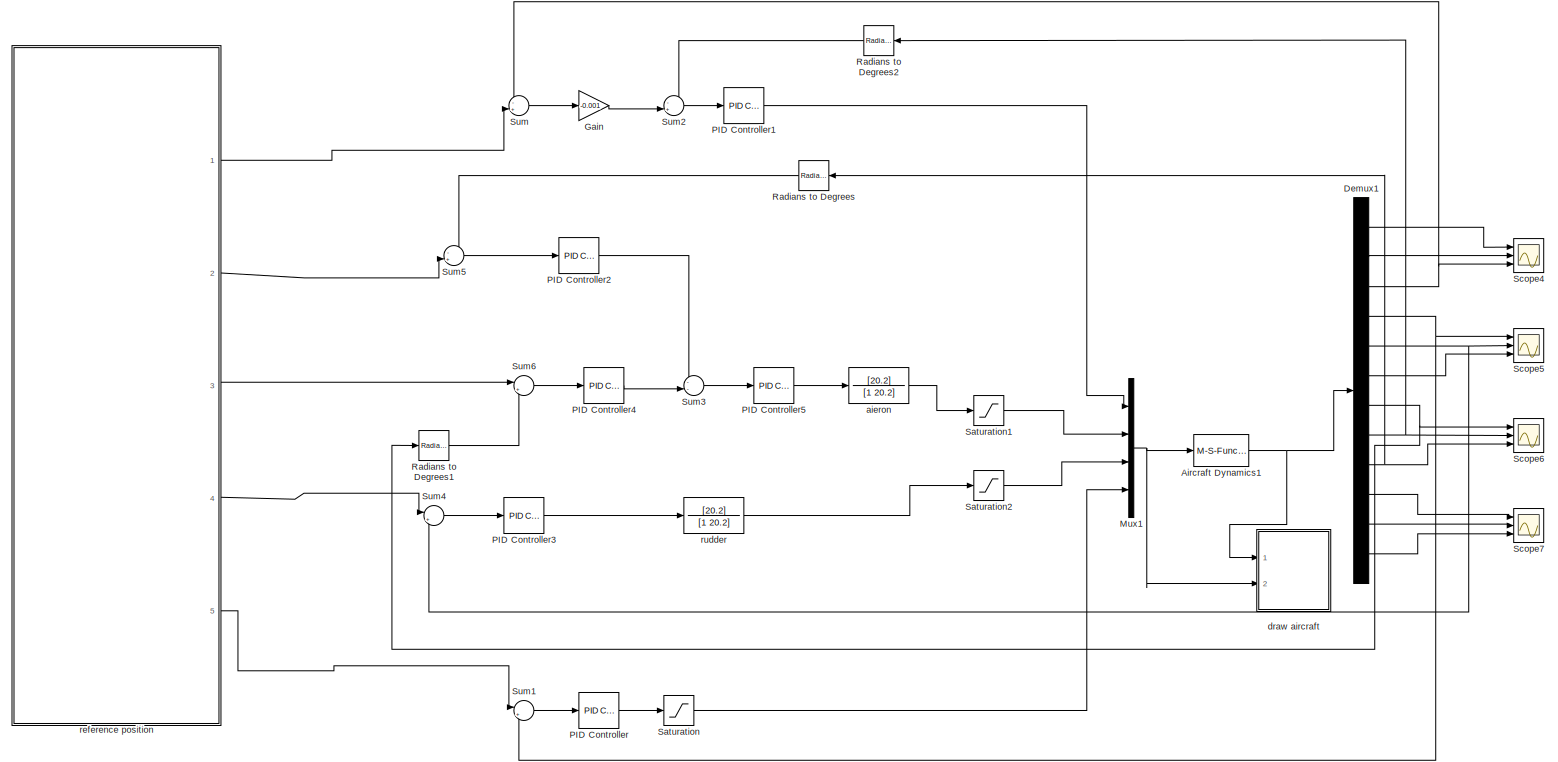
[diagram: root canvas - part 1/1, most of the canvas]
MODEL slx_59e200dbf067
KIND model
CONFIG AbsTol = auto
CONFIG EnableMultiTasking = off
CONFIG FixedStep = auto
CONFIG MaxStep = auto
CONFIG MinStep = auto
CONFIG RelTol = 1e-3
CONFIG SampleTimeConstraint = Unconstrained
CONFIG SolverName = VariableStepAuto
CONFIG StartTime = 0.0
CONFIG StopTime = 500
BLOCK [M-S-Function] Aircraft Dynamics1
  FunctionName = aircraft_dynamics1216_PROJECT
  Parameters = P
  Ports = [1, 1]
BLOCK [Demux] Demux1
  Outputs = 12
  Ports = [1, 12]
BLOCK [Gain] Gain
  Gain = -0.001
  Multiplication = Matrix(K*u)
BLOCK [Mux] Mux1
  DisplayOption = bar
  Ports = [4, 1]
BLOCK [Reference] PID Controller  REF=slpidlib/PID Controller
  Ports = [1, 1]
  SourceBlock = slpidlib/PID Controller
  SourceProductBaseCode = SL
  SourceType = PID 1dof
BLOCK [Reference] PID Controller1  REF=slpidlib/PID Controller
  Ports = [1, 1]
  SourceBlock = slpidlib/PID Controller
  SourceProductBaseCode = SL
  SourceType = PID 1dof
BLOCK [Reference] PID Controller2  REF=slpidlib/PID Controller
  Ports = [1, 1]
  SourceBlock = slpidlib/PID Controller
  SourceProductBaseCode = SL
  SourceType = PID 1dof
BLOCK [Reference] PID Controller3  REF=slpidlib/PID Controller
  Ports = [1, 1]
  SourceBlock = slpidlib/PID Controller
  SourceProductBaseCode = SL
  SourceType = PID 1dof
BLOCK [Reference] PID Controller4  REF=slpidlib/PID Controller
  Ports = [1, 1]
  SourceBlock = slpidlib/PID Controller
  SourceProductBaseCode = SL
  SourceType = PID 1dof
BLOCK [Reference] PID Controller5  REF=slpidlib/PID Controller
  Ports = [1, 1]
  SourceBlock = slpidlib/PID Controller
  SourceProductBaseCode = SL
  SourceType = PID 1dof
BLOCK [Reference] Radians to Degrees  REF=simulink_extras/Transformations/Radians
to Degrees
  Ports = [1, 1]
  SourceBlock = simulink_extras/Transformations/Radians\nto Degrees
  SourceProductBaseCode = SL
  SourceType = RadiansToDegrees
BLOCK [Reference] Radians to Degrees1  REF=simulink_extras/Transformations/Radians
to Degrees
  Ports = [1, 1]
  SourceBlock = simulink_extras/Transformations/Radians\nto Degrees
  SourceProductBaseCode = SL
  SourceType = RadiansToDegrees
BLOCK [Reference] Radians to Degrees2  REF=simulink_extras/Transformations/Radians
to Degrees
  Ports = [1, 1]
  SourceBlock = simulink_extras/Transformations/Radians\nto Degrees
  SourceProductBaseCode = SL
  SourceType = RadiansToDegrees
BLOCK [Saturate] Saturation
BLOCK [Saturate] Saturation1
  LowerLimit = -50
  UpperLimit = 50
BLOCK [Saturate] Saturation2
  LowerLimit = -50
  UpperLimit = 50
BLOCK [Scope] Scope4
  Floating = off
  NumInputPorts = 3
  Ports = [3]
  ScopeSpecificationString = Simulink.scopes.TimeScopeBlockCfg('CurrentConfiguration', extmgr.ConfigurationSet(extmgr.Configuration('Core','General UI',true),extmgr.Configuration('Core','Source UI',true),extmgr.Configuration('Sources','WiredSimulink',true,'DataLoggingVariableName','ScopeData4'),extmgr.Configuration('Visuals','Time Domain',true,'SerializedDisplays',{struct('MinYLimReal','-2284.31646','MaxYLimReal','558.84814',...<+1524ch>
BLOCK [Scope] Scope5
  Floating = off
  NumInputPorts = 3
  Ports = [3]
  ScopeSpecificationString = Simulink.scopes.TimeScopeBlockCfg('CurrentConfiguration', extmgr.ConfigurationSet(extmgr.Configuration('Core','General UI',true),extmgr.Configuration('Core','Source UI',true),extmgr.Configuration('Sources','WiredSimulink',true,'DataLoggingVariableName','ScopeData5'),extmgr.Configuration('Visuals','Time Domain',true,'SerializedDisplays',{struct('MinYLimReal','-6.07941','MaxYLimReal','32.20759','YLa...<+1502ch>
BLOCK [Scope] Scope6
  Floating = off
  NumInputPorts = 3
  Ports = [3]
  ScopeSpecificationString = Simulink.scopes.TimeScopeBlockCfg('CurrentConfiguration', extmgr.ConfigurationSet(extmgr.Configuration('Core','General UI',true),extmgr.Configuration('Core','Source UI',true),extmgr.Configuration('Sources','WiredSimulink',true,'DataLoggingVariableName','ScopeData6'),extmgr.Configuration('Visuals','Time Domain',true,'SerializedDisplays',{struct('MinYLimReal','-0.7151','MaxYLimReal','5.94013','YLabe...<+1514ch>
BLOCK [Scope] Scope7
  Floating = off
  NumInputPorts = 3
  Ports = [3]
  ScopeSpecificationString = Simulink.scopes.TimeScopeBlockCfg('CurrentConfiguration', extmgr.ConfigurationSet(extmgr.Configuration('Core','General UI',true),extmgr.Configuration('Core','Source UI',true),extmgr.Configuration('Sources','WiredSimulink',true,'DataLoggingVariableName','ScopeData7'),extmgr.Configuration('Visuals','Time Domain',true,'SerializedDisplays',{struct('MinYLimReal','-972.89697','MaxYLimReal','2770.1101','...<+1512ch>
BLOCK [Sum] Sum
  Inputs = -+|
  Ports = [2, 1]
BLOCK [Sum] Sum1
  Inputs = |+-
  Ports = [2, 1]
BLOCK [Sum] Sum2
  Inputs = -+|
  Ports = [2, 1]
BLOCK [Sum] Sum3
  Inputs = --|
  Ports = [2, 1]
BLOCK [Sum] Sum4
  Inputs = |+-
  Ports = [2, 1]
BLOCK [Sum] Sum5
  Inputs = -+|
  Ports = [2, 1]
BLOCK [Sum] Sum6
  Inputs = |+-
  Ports = [2, 1]
BLOCK [TransferFcn] aieron 
  Denominator = [1 20.2]
  Numerator = [20.2]
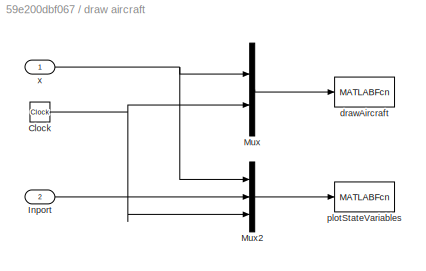
BLOCK [SubSystem] draw aircraft
  Ports = [2]
  RequestExecContextInheritance = off
BLOCK [Clock] draw aircraft/Clock
BLOCK [Inport] draw aircraft/Inport
  Port = 2
BLOCK [Mux] draw aircraft/Mux
  DisplayOption = bar
  Inputs = 2
  Ports = [2, 1]
BLOCK [Mux] draw aircraft/Mux2
  DisplayOption = bar
  Inputs = 3
  Ports = [3, 1]
BLOCK [MATLABFcn] draw aircraft/drawAircraft
  MATLABFcn = drawAircraft(u)
  OutputDimensions = 0
  Ports = [1]
  SampleTime = 0.1
BLOCK [MATLABFcn] draw aircraft/plotStateVariables
  MATLABFcn = plotmavstatevariables(u)
  OutputDimensions = 0
  Ports = [1]
  SampleTime = 0.1
BLOCK [Inport] draw aircraft/x
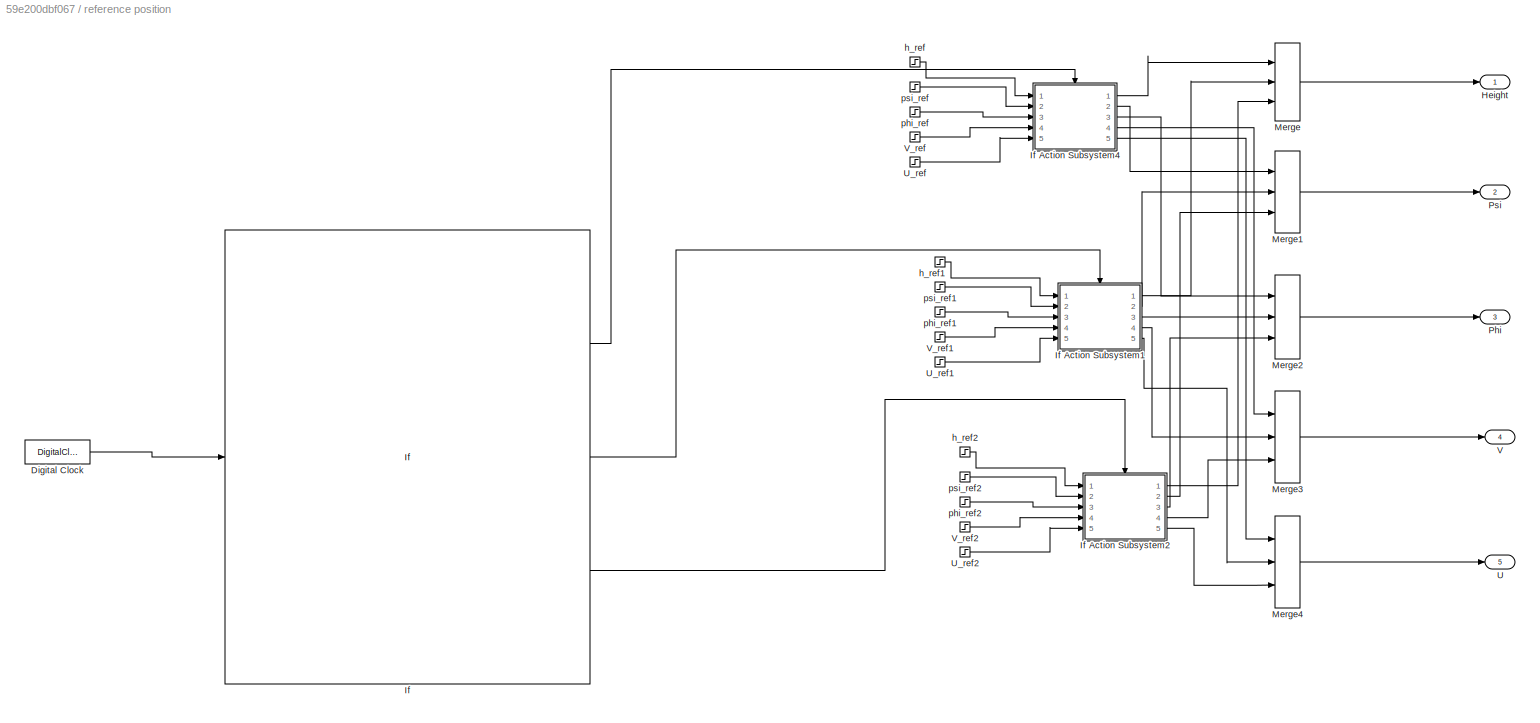
BLOCK [SubSystem] reference position 
  Ports = [0, 5]
  RequestExecContextInheritance = off
BLOCK [DigitalClock] reference position /Digital Clock
BLOCK [Outport] reference position /Height
  VectorParamsAs1DForOutWhenUnconnected = off
BLOCK [If] reference position /If
  ElseIfExpressions = u1>35.27&u1<=65.473
  IfExpression = u1>=0&u1<=35.27
  Ports = [1, 3]
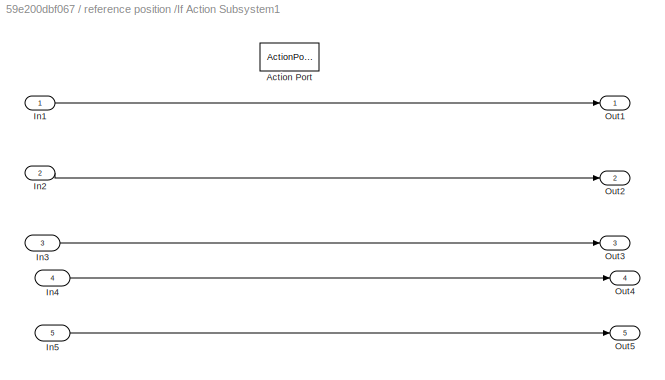
BLOCK [SubSystem] reference position /If Action Subsystem1
  Ports = [5, 5, 0, 0, 0, 0, 0, 1]
  RequestExecContextInheritance = off
  TreatAsAtomicUnit = on
BLOCK [ActionPort] reference position /If Action Subsystem1/Action Port
  ActionPortLabel = elseif(u1>35.27&u1<=65.473)
BLOCK [Inport] reference position /If Action Subsystem1/In1
BLOCK [Inport] reference position /If Action Subsystem1/In2
  Port = 2
BLOCK [Inport] reference position /If Action Subsystem1/In3
  Port = 3
BLOCK [Inport] reference position /If Action Subsystem1/In4
  Port = 4
BLOCK [Inport] reference position /If Action Subsystem1/In5
  Port = 5
BLOCK [Outport] reference position /If Action Subsystem1/Out1
  VectorParamsAs1DForOutWhenUnconnected = off
BLOCK [Outport] reference position /If Action Subsystem1/Out2
  Port = 2
  VectorParamsAs1DForOutWhenUnconnected = off
BLOCK [Outport] reference position /If Action Subsystem1/Out3
  Port = 3
  VectorParamsAs1DForOutWhenUnconnected = off
BLOCK [Outport] reference position /If Action Subsystem1/Out4
  Port = 4
  VectorParamsAs1DForOutWhenUnconnected = off
BLOCK [Outport] reference position /If Action Subsystem1/Out5
  Port = 5
  VectorParamsAs1DForOutWhenUnconnected = off
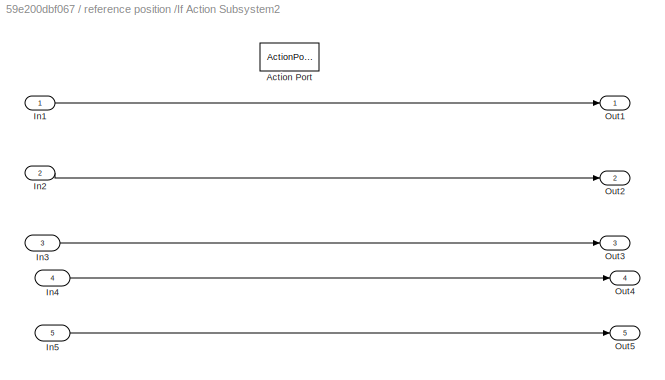
BLOCK [SubSystem] reference position /If Action Subsystem2
  Ports = [5, 5, 0, 0, 0, 0, 0, 1]
  RequestExecContextInheritance = off
  TreatAsAtomicUnit = on
BLOCK [ActionPort] reference position /If Action Subsystem2/Action Port
  ActionPortLabel = else
BLOCK [Inport] reference position /If Action Subsystem2/In1
BLOCK [Inport] reference position /If Action Subsystem2/In2
  Port = 2
BLOCK [Inport] reference position /If Action Subsystem2/In3
  Port = 3
BLOCK [Inport] reference position /If Action Subsystem2/In4
  Port = 4
BLOCK [Inport] reference position /If Action Subsystem2/In5
  Port = 5
BLOCK [Outport] reference position /If Action Subsystem2/Out1
  VectorParamsAs1DForOutWhenUnconnected = off
BLOCK [Outport] reference position /If Action Subsystem2/Out2
  Port = 2
  VectorParamsAs1DForOutWhenUnconnected = off
BLOCK [Outport] reference position /If Action Subsystem2/Out3
  Port = 3
  VectorParamsAs1DForOutWhenUnconnected = off
BLOCK [Outport] reference position /If Action Subsystem2/Out4
  Port = 4
  VectorParamsAs1DForOutWhenUnconnected = off
BLOCK [Outport] reference position /If Action Subsystem2/Out5
  Port = 5
  VectorParamsAs1DForOutWhenUnconnected = off
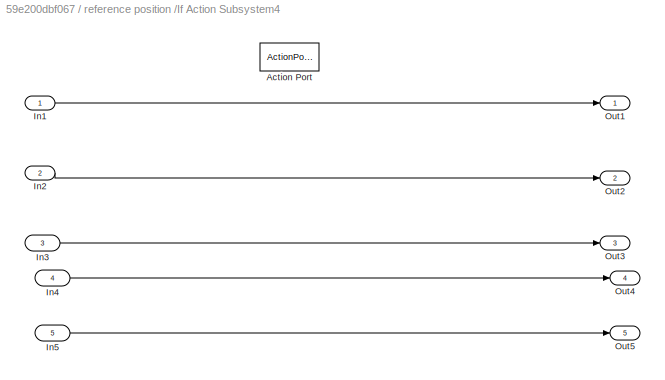
BLOCK [SubSystem] reference position /If Action Subsystem4
  Ports = [5, 5, 0, 0, 0, 0, 0, 1]
  RequestExecContextInheritance = off
  TreatAsAtomicUnit = on
BLOCK [ActionPort] reference position /If Action Subsystem4/Action Port
  ActionPortLabel = if(u1>=0&u1<=35.27)
BLOCK [Inport] reference position /If Action Subsystem4/In1
BLOCK [Inport] reference position /If Action Subsystem4/In2
  Port = 2
BLOCK [Inport] reference position /If Action Subsystem4/In3
  Port = 3
BLOCK [Inport] reference position /If Action Subsystem4/In4
  Port = 4
BLOCK [Inport] reference position /If Action Subsystem4/In5
  Port = 5
BLOCK [Outport] reference position /If Action Subsystem4/Out1
  VectorParamsAs1DForOutWhenUnconnected = off
BLOCK [Outport] reference position /If Action Subsystem4/Out2
  Port = 2
  VectorParamsAs1DForOutWhenUnconnected = off
BLOCK [Outport] reference position /If Action Subsystem4/Out3
  Port = 3
  VectorParamsAs1DForOutWhenUnconnected = off
BLOCK [Outport] reference position /If Action Subsystem4/Out4
  Port = 4
  VectorParamsAs1DForOutWhenUnconnected = off
BLOCK [Outport] reference position /If Action Subsystem4/Out5
  Port = 5
  VectorParamsAs1DForOutWhenUnconnected = off
BLOCK [Merge] reference position /Merge
  Inputs = 3
  Ports = [3, 1]
BLOCK [Merge] reference position /Merge1
  Inputs = 3
  Ports = [3, 1]
BLOCK [Merge] reference position /Merge2
  Inputs = 3
  Ports = [3, 1]
BLOCK [Merge] reference position /Merge3
  Inputs = 3
  Ports = [3, 1]
BLOCK [Merge] reference position /Merge4
  Inputs = 3
  Ports = [3, 1]
BLOCK [Outport] reference position /Phi
  Port = 3
  VectorParamsAs1DForOutWhenUnconnected = off
BLOCK [Outport] reference position /Psi
  Port = 2
  VectorParamsAs1DForOutWhenUnconnected = off
BLOCK [Outport] reference position /U
  Port = 5
  VectorParamsAs1DForOutWhenUnconnected = off
BLOCK [Step] reference position /U_ref
  After = 28.35
  Before = 28.35
  SampleTime = 0
BLOCK [Step] reference position /U_ref1
  After = 28.35
  Before = 28.35
  SampleTime = 0
BLOCK [Step] reference position /U_ref2
  After = 28.35
  Before = 28.35
  SampleTime = 0
BLOCK [Outport] reference position /V
  Port = 4
  VectorParamsAs1DForOutWhenUnconnected = off
BLOCK [Step] reference position /V_ref
  After = 0
  SampleTime = 0
BLOCK [Step] reference position /V_ref1
  After = 0
  SampleTime = 0
BLOCK [Step] reference position /V_ref2
  After = 0
  SampleTime = 0
BLOCK [Step] reference position /h_ref
  After = -2000
  Before = -2000
  SampleTime = 0
BLOCK [Step] reference position /h_ref1
  After = -2000
  Before = -2000
  SampleTime = 0
BLOCK [Step] reference position /h_ref2
  After = -1000
  Before = -2000
  SampleTime = 0
BLOCK [Step] reference position /phi_ref
  After = 0
  SampleTime = 0
BLOCK [Step] reference position /phi_ref1
  After = 17
  Before = 17
  SampleTime = 0
BLOCK [Step] reference position /phi_ref2
  After = 0
  Before = 17
  SampleTime = 0
BLOCK [Step] reference position /psi_ref
  After = 0
  SampleTime = 0
BLOCK [Step] reference position /psi_ref1
  After = 180
  SampleTime = 0
BLOCK [Step] reference position /psi_ref2
  After = 0
  Before = 180
  SampleTime = 0
BLOCK [TransferFcn] rudder 
  Denominator = [1 20.2]
  Numerator = [20.2]
NET Aircraft Dynamics1:1 -> Demux1:1, draw aircraft:1
LINE Demux1:1 -> Scope4:1
LINE Demux1:10 -> Scope7:1
LINE Demux1:11 -> Scope7:2
LINE Demux1:12 -> Scope7:3
LINE Demux1:2 -> Scope4:2
NET Demux1:3 -> Scope4:3, Sum:1
NET Demux1:4 -> Scope5:1, Sum1:2
NET Demux1:5 -> Scope5:2, Sum4:2
LINE Demux1:6 -> Scope5:3
NET Demux1:7 -> Radians to Degrees1:1, Scope6:1
NET Demux1:8 -> Radians to Degrees2:1, Scope6:2
NET Demux1:9 -> Radians to Degrees:1, Scope6:3
LINE Gain:1 -> Sum2:2
NET Mux1:1 -> Aircraft Dynamics1:1, draw aircraft:2
LINE PID Controller1:1 -> Mux1:1
LINE PID Controller2:1 -> Sum3:1
LINE PID Controller3:1 -> rudder :1
LINE PID Controller4:1 -> Sum3:2
LINE PID Controller5:1 -> aieron :1
LINE PID Controller:1 -> Saturation:1
LINE Radians to Degrees1:1 -> Sum6:2
LINE Radians to Degrees2:1 -> Sum2:1
LINE Radians to Degrees:1 -> Sum5:1
LINE Saturation1:1 -> Mux1:2
LINE Saturation2:1 -> Mux1:3
LINE Saturation:1 -> Mux1:4
LINE Sum1:1 -> PID Controller:1
LINE Sum2:1 -> PID Controller1:1
LINE Sum3:1 -> PID Controller5:1
LINE Sum4:1 -> PID Controller3:1
LINE Sum5:1 -> PID Controller2:1
LINE Sum6:1 -> PID Controller4:1
LINE Sum:1 -> Gain:1
LINE aieron :1 -> Saturation1:1
NET draw aircraft/Clock:1 -> draw aircraft/Mux2:3, draw aircraft/Mux:2
LINE draw aircraft/Inport:1 -> draw aircraft/Mux2:2
LINE draw aircraft/Mux2:1 -> draw aircraft/plotStateVariables:1
LINE draw aircraft/Mux:1 -> draw aircraft/drawAircraft:1
NET draw aircraft/x:1 -> draw aircraft/Mux2:1, draw aircraft/Mux:1
LINE reference position /Digital Clock:1 -> reference position /If:1
LINE reference position /If Action Subsystem1/In1:1 -> reference position /If Action Subsystem1/Out1:1
LINE reference position /If Action Subsystem1/In2:1 -> reference position /If Action Subsystem1/Out2:1
LINE reference position /If Action Subsystem1/In3:1 -> reference position /If Action Subsystem1/Out3:1
LINE reference position /If Action Subsystem1/In4:1 -> reference position /If Action Subsystem1/Out4:1
LINE reference position /If Action Subsystem1/In5:1 -> reference position /If Action Subsystem1/Out5:1
LINE reference position /If Action Subsystem1:1 -> reference position /Merge:2
LINE reference position /If Action Subsystem1:2 -> reference position /Merge1:2
LINE reference position /If Action Subsystem1:3 -> reference position /Merge2:2
LINE reference position /If Action Subsystem1:4 -> reference position /Merge3:2
LINE reference position /If Action Subsystem1:5 -> reference position /Merge4:2
LINE reference position /If Action Subsystem2/In1:1 -> reference position /If Action Subsystem2/Out1:1
LINE reference position /If Action Subsystem2/In2:1 -> reference position /If Action Subsystem2/Out2:1
LINE reference position /If Action Subsystem2/In3:1 -> reference position /If Action Subsystem2/Out3:1
LINE reference position /If Action Subsystem2/In4:1 -> reference position /If Action Subsystem2/Out4:1
LINE reference position /If Action Subsystem2/In5:1 -> reference position /If Action Subsystem2/Out5:1
LINE reference position /If Action Subsystem2:1 -> reference position /Merge:3
LINE reference position /If Action Subsystem2:2 -> reference position /Merge1:3
LINE reference position /If Action Subsystem2:3 -> reference position /Merge2:3
LINE reference position /If Action Subsystem2:4 -> reference position /Merge3:3
LINE reference position /If Action Subsystem2:5 -> reference position /Merge4:3
LINE reference position /If Action Subsystem4/In1:1 -> reference position /If Action Subsystem4/Out1:1
LINE reference position /If Action Subsystem4/In2:1 -> reference position /If Action Subsystem4/Out2:1
LINE reference position /If Action Subsystem4/In3:1 -> reference position /If Action Subsystem4/Out3:1
LINE reference position /If Action Subsystem4/In4:1 -> reference position /If Action Subsystem4/Out4:1
LINE reference position /If Action Subsystem4/In5:1 -> reference position /If Action Subsystem4/Out5:1
LINE reference position /If Action Subsystem4:1 -> reference position /Merge:1
LINE reference position /If Action Subsystem4:2 -> reference position /Merge1:1
LINE reference position /If Action Subsystem4:3 -> reference position /Merge2:1
LINE reference position /If Action Subsystem4:4 -> reference position /Merge3:1
LINE reference position /If Action Subsystem4:5 -> reference position /Merge4:1
LINE reference position /If:1 -> reference position /If Action Subsystem4:ifaction
LINE reference position /If:2 -> reference position /If Action Subsystem1:ifaction
LINE reference position /If:3 -> reference position /If Action Subsystem2:ifaction
LINE reference position /Merge1:1 -> reference position /Psi:1
LINE reference position /Merge2:1 -> reference position /Phi:1
LINE reference position /Merge3:1 -> reference position /V:1
LINE reference position /Merge4:1 -> reference position /U:1
LINE reference position /Merge:1 -> reference position /Height:1
LINE reference position /U_ref1:1 -> reference position /If Action Subsystem1:5
LINE reference position /U_ref2:1 -> reference position /If Action Subsystem2:5
LINE reference position /U_ref:1 -> reference position /If Action Subsystem4:5
LINE reference position /V_ref1:1 -> reference position /If Action Subsystem1:4
LINE reference position /V_ref2:1 -> reference position /If Action Subsystem2:4
LINE reference position /V_ref:1 -> reference position /If Action Subsystem4:4
LINE reference position /h_ref1:1 -> reference position /If Action Subsystem1:1
LINE reference position /h_ref2:1 -> reference position /If Action Subsystem2:1
LINE reference position /h_ref:1 -> reference position /If Action Subsystem4:1
LINE reference position /phi_ref1:1 -> reference position /If Action Subsystem1:3
LINE reference position /phi_ref2:1 -> reference position /If Action Subsystem2:3
LINE reference position /phi_ref:1 -> reference position /If Action Subsystem4:3
LINE reference position /psi_ref1:1 -> reference position /If Action Subsystem1:2
LINE reference position /psi_ref2:1 -> reference position /If Action Subsystem2:2
LINE reference position /psi_ref:1 -> reference position /If Action Subsystem4:2
LINE reference position :1 -> Sum:2
LINE reference position :2 -> Sum5:2
LINE reference position :3 -> Sum6:1
LINE reference position :4 -> Sum4:1
LINE reference position :5 -> Sum1:1
LINE rudder :1 -> Saturation2:1
note: NET lines group one-source signal fan-out (src -> all destinations, sorted); 1:1 wires keep LINE
